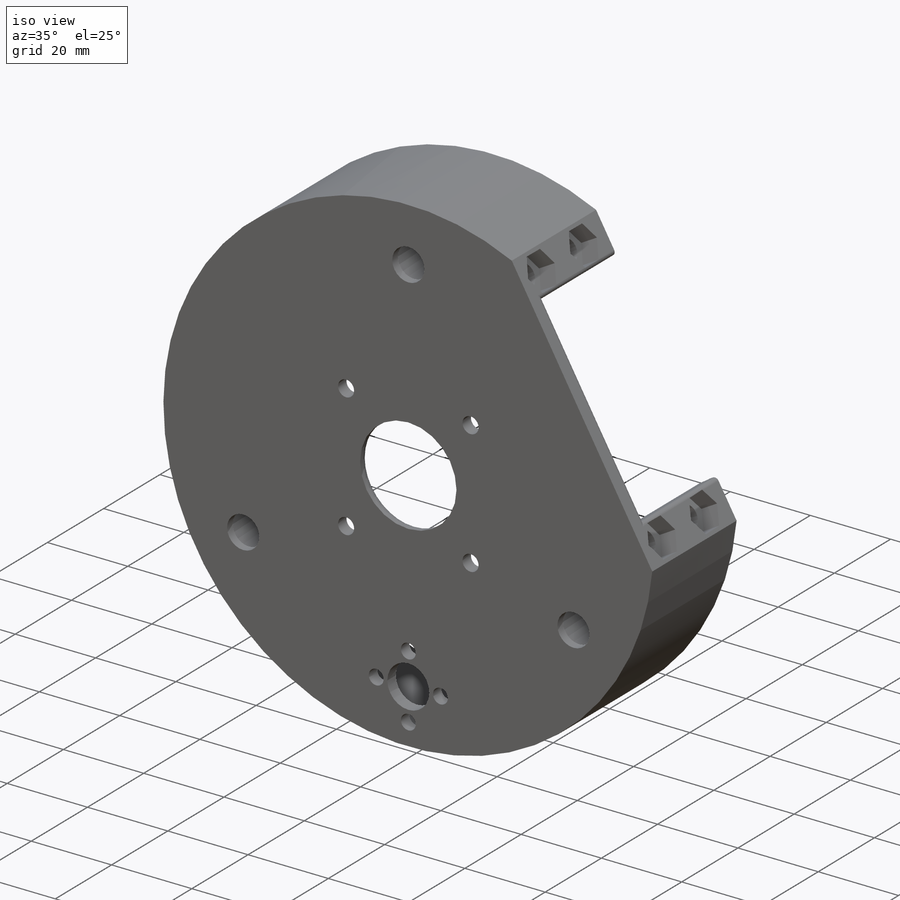
[diagram: iso view]
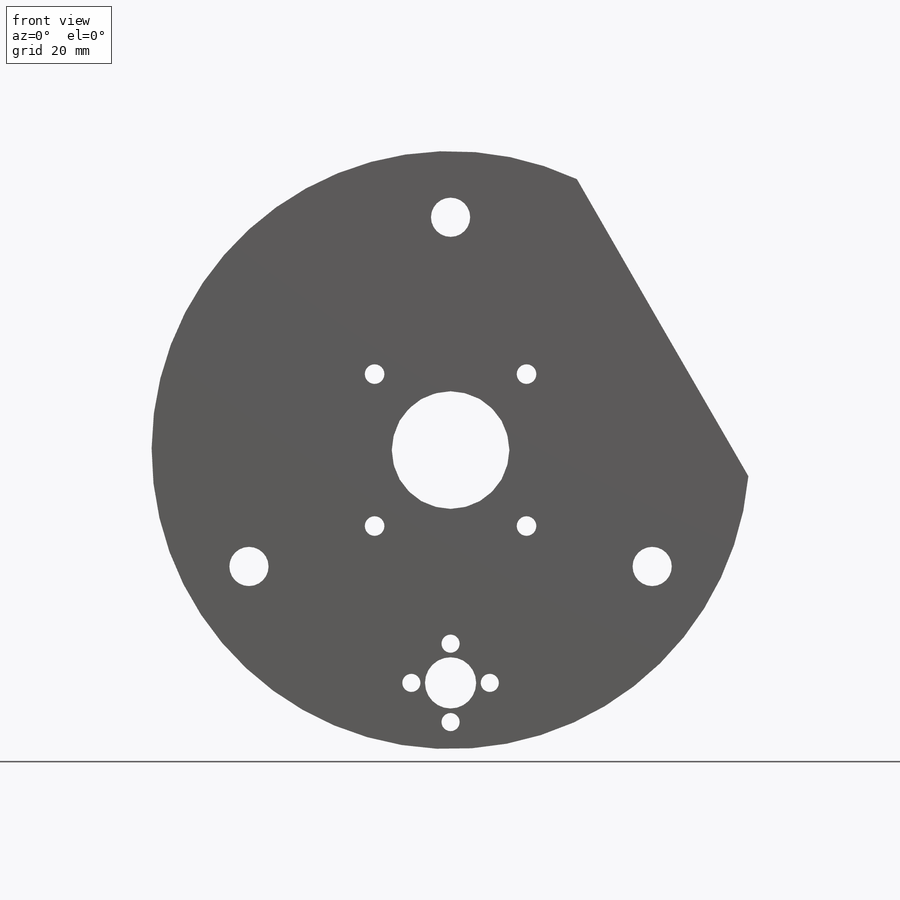
[diagram: front view]
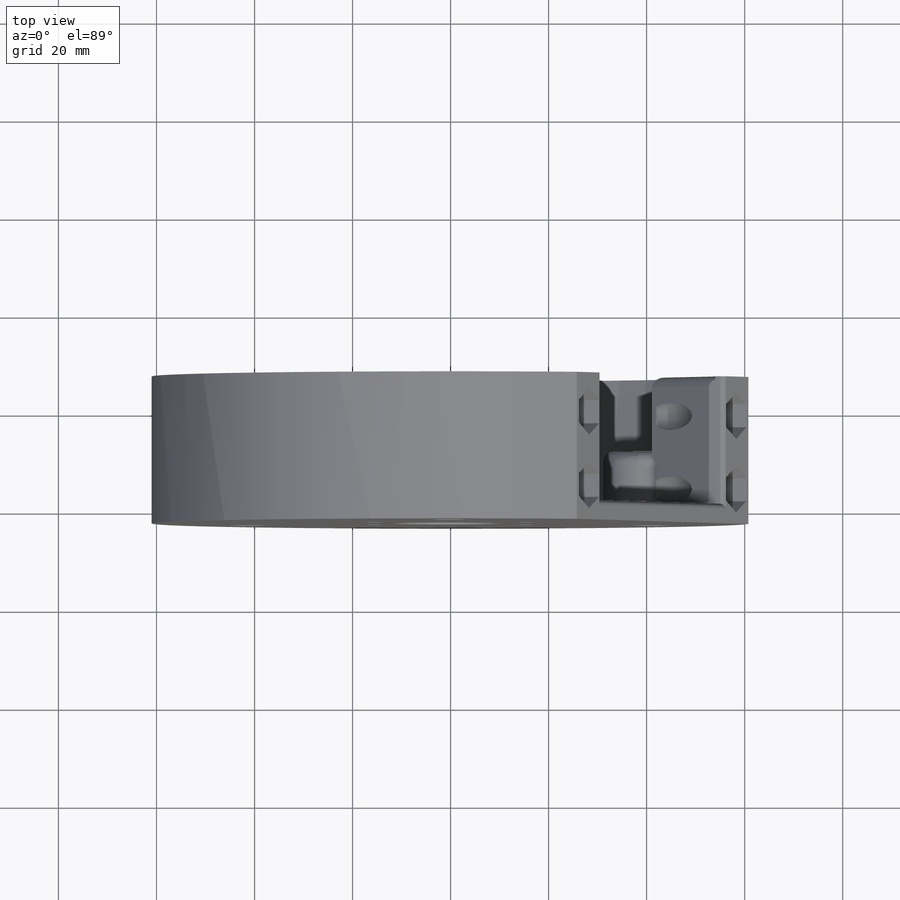
[diagram: top view]
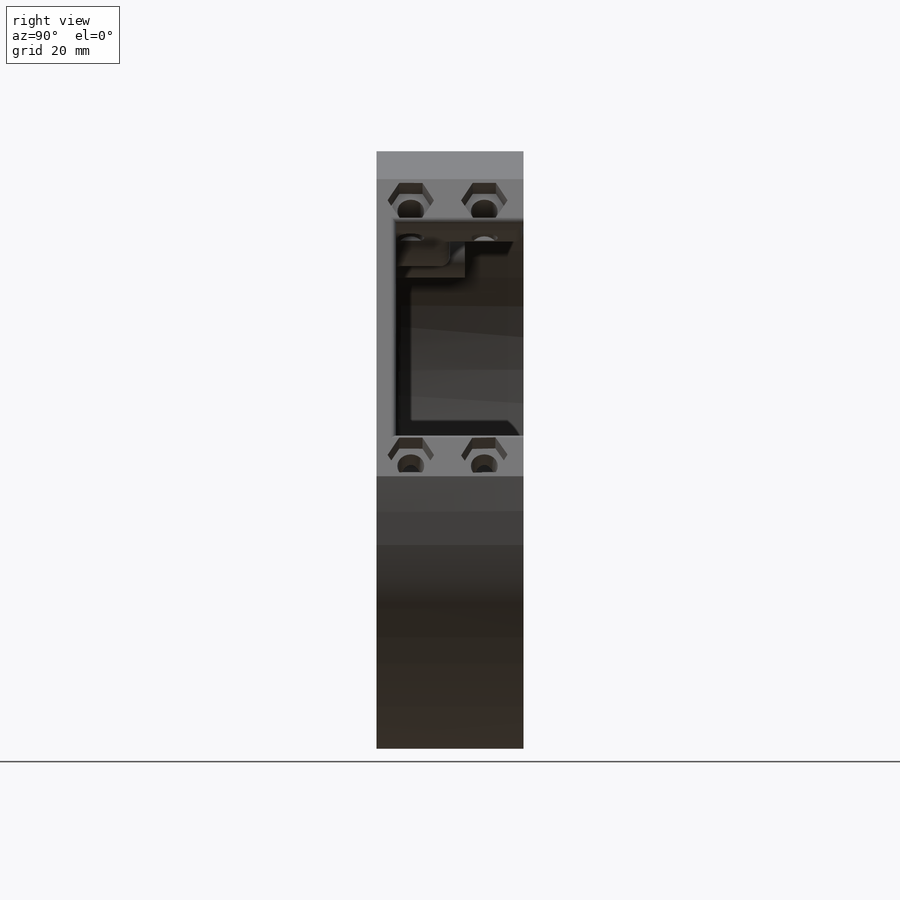
[diagram: right view]
SOLIDWORKS PART (.sldprt)
format: sldprt  version: not decoded by parser v0  size: 845,824 bytes
history: native  units: mm
features: sketch x17, cut_extrude x10, extrude x7, fillet x5, plane x4, material x1, pattern_circular x1 (+9 scaffold rows collapsed)
feature tree (54):
  scaffold x9  (default folders/planes/origin — collapsed)
  material  "Material <sin especificar>"
  plane  "Alzado"
  plane  "Planta"
  plane  "Vista lateral"
  sketch  "Croquis1"  dims[D1=122.0mm]
  extrude  "Saliente-Extruir1"  Depth=3mm
  sketch  "Croquis2"  dims[c1.D1=95.0mm c1.D2=12.2mm c1.D4=10.45mm c1.D5=16.0mm c1.D6=3.7mm c2.D1=22.0mm c2.D7=4.0mm c2.D8=24.0mm c3.D1=31.0mm c3.D5=31.0mm c3.D3=3.0]
  cut_extrude  "Cortar-Extruir1"  Depth=3mm
  sketch  "Croquis4"  dims[c1.D1=~31.196772mm c2.D1=45.0deg c3.D1=~14.359789mm c4.D1=45.0deg c5.D1=47.61mm c6.D1=~119.159017deg c7.D1=~41.432047mm c8.D1=59.58deg c8.D2=~47.242977mm c9.D1=~41.136207mm c10.D1=120.0deg c11.D1=~41.136207mm c12.D1=60.0deg c12.D3=35.0mm]
  cut_extrude  "Cortar-Extruir2"  Depth=3mm
  sketch  "Croquis5"  dims[D2=24.0mm D1=2.0mm]
  extrude  "Saliente-Extruir2"  Depth=27mm
  sketch  "Croquis6"  dims[D1=10.0mm]
  extrude  "Saliente-Extruir3"  Depth=12mm
  pattern_circular  "MatrizC1"  Count=3 Angle=240deg
  plane  "Plano1"  Offset=2mm
  sketch  "Croquis7"  dims[D1=8.0mm D2=3.0]
  extrude  "Saliente-Extruir4"  Depth=2mm
  sketch  "Croquis10"  dims[c1.D4=5.5mm c1.D5=10.0mm c1.D1=60.0mm c1.D2=7.0mm c1.D3=15.0mm c2.D5=7.0mm]
  cut_extrude  "Cortar-Extruir3"  Depth=12mm
  sketch  "Croquis11"  dims[D1=10.0mm]
  extrude  "Saliente-Extruir5"  [1 undecoded]
  sketch  "Croquis12"  dims[c1.D1=10.0mm c1.D2=~9.959292mm c2.D2=90.0deg c2.D3=~7.34779mm c3.D3=30.0deg c4.D3=11.5mm c5.D3=90.0deg c5.D4=~17.393072mm c6.D4=30.0deg]
  extrude  "Saliente-Extruir6"  [1 undecoded]
  sketch  "Croquis13"  dims[D1=8.2mm D2=8.2mm]
  cut_extrude  "Cortar-Extruir6"  Depth=5mm
  sketch  "Croquis14"  dims[D1=5.5mm D2=5.5mm]
  cut_extrude  "Cortar-Extruir7"  Depth=15mm
  sketch  "Croquis15"  dims[D1=8.2mm D2=8.2mm]
  cut_extrude  "Cortar-Extruir8"  Depth=5mm
  sketch  "Croquis16"  dims[D1=5.5mm D2=5.5mm]
  cut_extrude  "Cortar-Extruir9"  Depth=20mm
  fillet  "Redondeo3"  Radius=2mm
  fillet  "Redondeo5"  Radius=2mm
  fillet  "Redondeo6"  Radius=1mm
  sketch  "Croquis18"  dims[D1=28.0mm D2=18.0mm D3=50.0mm]
  cut_extrude  "Cortar-Extruir10"  Depth=45mm
  fillet  "Redondeo11"  Radius=1mm
  fillet  "Redondeo12"  Radius=1mm
  sketch  "Croquis19"  dims[c1.D3=7.0mm c1.D4=7.0mm c1.D5=12.0mm c2.D3=12.0mm c2.D4=12.0mm c2.D1=47.5mm c3.D1=60.0deg c3.D2=~40.017594mm c4.D2=60.0deg]
  extrude  "Saliente-Extruir7"  Depth=15mm
  sketch  "Croquis20"  dims[D1=5.5mm]
  cut_extrude  "Cortar-Extruir11"  [1 undecoded]
  sketch  "Croquis21"  dims[D1=8.2mm D2=8.2mm D3=8.2mm]
  cut_extrude  "Cortar-Extruir12"  Depth=5mm
decode coverage: 37 of 40 modeling features carry decoded parameters
note: ~ marks probable driven/reference dimensions
note: 3 parameter values undecoded
summary: no parameter record found for 3 features
note: suppression state not decoded; provenance and decode notes live in map.json
